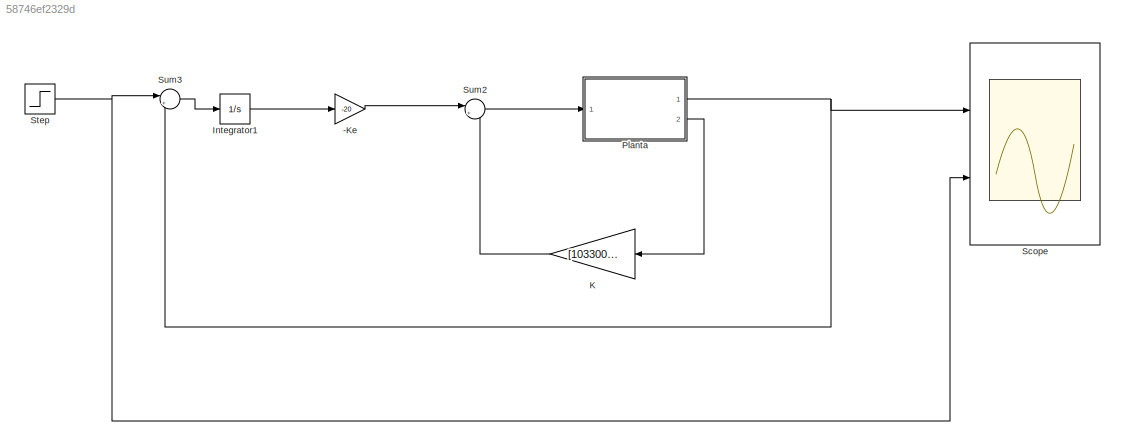
MODEL slx_58746ef2329d
KIND model
CONFIG AbsTol = auto
CONFIG EnableMultiTasking = off
CONFIG FixedStep = auto
CONFIG MaxStep = auto
CONFIG MinStep = auto
CONFIG RelTol = 1e-3
CONFIG SampleTimeConstraint = Unconstrained
CONFIG SolverName = VariableStepAuto
CONFIG StartTime = 0.0
CONFIG StopTime = 800
BLOCK [Gain] -Ke
  Gain = -20
  Multiplication = Matrix(K*u)
BLOCK [Integrator] Integrator1
  Ports = [1, 1]
BLOCK [Gain] K
  Gain = [103300 3730 0]
  Multiplication = Matrix(K*u)
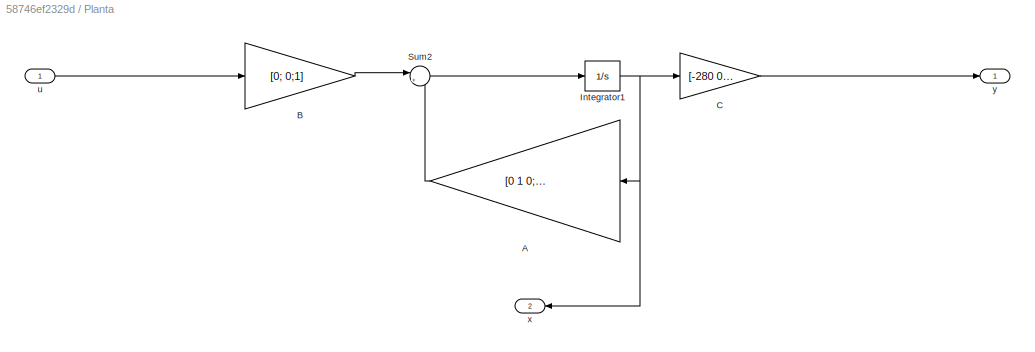
BLOCK [SubSystem] Planta
  Ports = [1, 2]
  RequestExecContextInheritance = off
BLOCK [Gain] Planta/A
  Gain = [0 1 0;0 0 1; 98000 980 -100]
  Multiplication = Matrix(K*u)
BLOCK [Gain] Planta/B
  Gain = [0; 0;1]
  Multiplication = Matrix(K*u)
BLOCK [Gain] Planta/C
  Gain = [-280 0 0]
  Multiplication = Matrix(K*u)
BLOCK [Integrator] Planta/Integrator1
  Ports = [1, 1]
BLOCK [Sum] Planta/Sum2
  Inputs = |++
  Ports = [2, 1]
BLOCK [Inport] Planta/u
BLOCK [Outport] Planta/x
  Port = 2
BLOCK [Outport] Planta/y
BLOCK [Scope] Scope
  Floating = off
  NumInputPorts = 2
  Ports = [2]
  ScopeSpecificationString = Simulink.scopes.TimeScopeBlockCfg('CurrentConfiguration', extmgr.ConfigurationSet(extmgr.Configuration('Core','General UI',true),extmgr.Configuration('Core','Source UI',true),extmgr.Configuration('Sources','WiredSimulink',true),extmgr.Configuration('Visuals','Time Domain',true,'SerializedDisplays',{struct('MinYLimReal','0.14997','MaxYLimReal','1.49097','YLabelReal','','MinYLimMag','0.14997','MaxYL...<+1436ch>
BLOCK [Step] Step
  SampleTime = 0
BLOCK [Sum] Sum2
  Inputs = |+-
  Ports = [2, 1]
BLOCK [Sum] Sum3
  Inputs = |+-
  Ports = [2, 1]
LINE -Ke:1 -> Sum2:1
LINE Integrator1:1 -> -Ke:1
LINE K:1 -> Sum2:2
LINE Planta/A:1 -> Planta/Sum2:2
LINE Planta/B:1 -> Planta/Sum2:1
LINE Planta/C:1 -> Planta/y:1
NET Planta/Integrator1:1 -> Planta/A:1, Planta/C:1, Planta/x:1
LINE Planta/Sum2:1 -> Planta/Integrator1:1
LINE Planta/u:1 -> Planta/B:1
NET Planta:1 -> Scope:1, Sum3:2
LINE Planta:2 -> K:1
NET Step:1 -> Scope:2, Sum3:1
LINE Sum2:1 -> Planta:1
LINE Sum3:1 -> Integrator1:1
note: NET lines group one-source signal fan-out (src -> all destinations, sorted); 1:1 wires keep LINE
